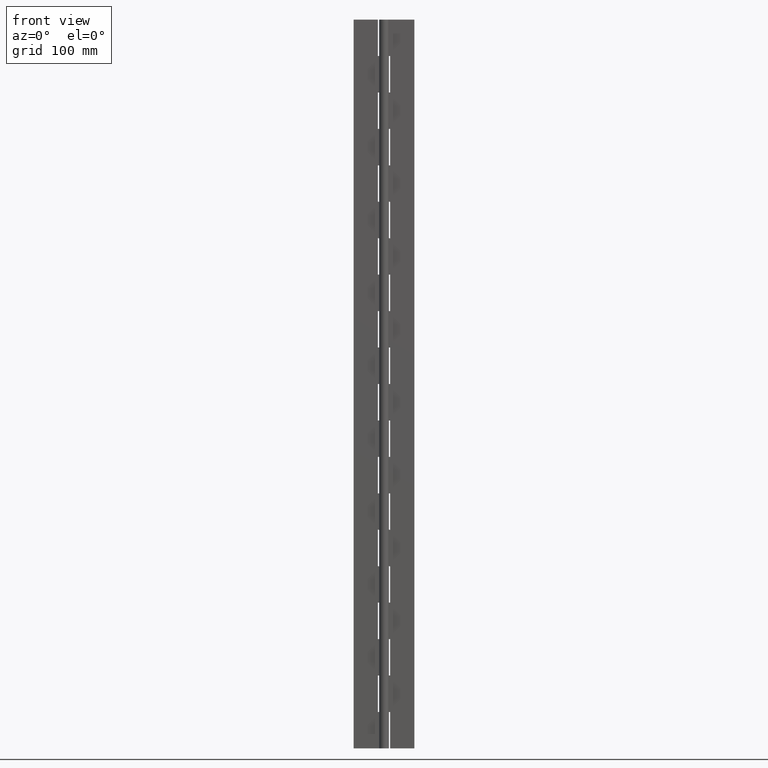
[diagram: clean part render]
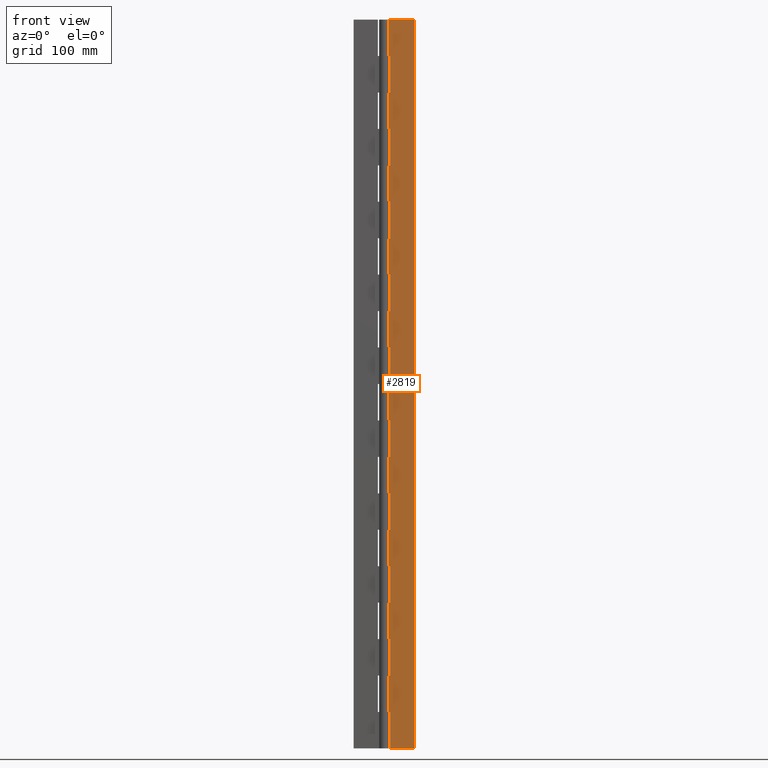
[diagram: same view with one face highlighted and labeled with its STEP entity id]
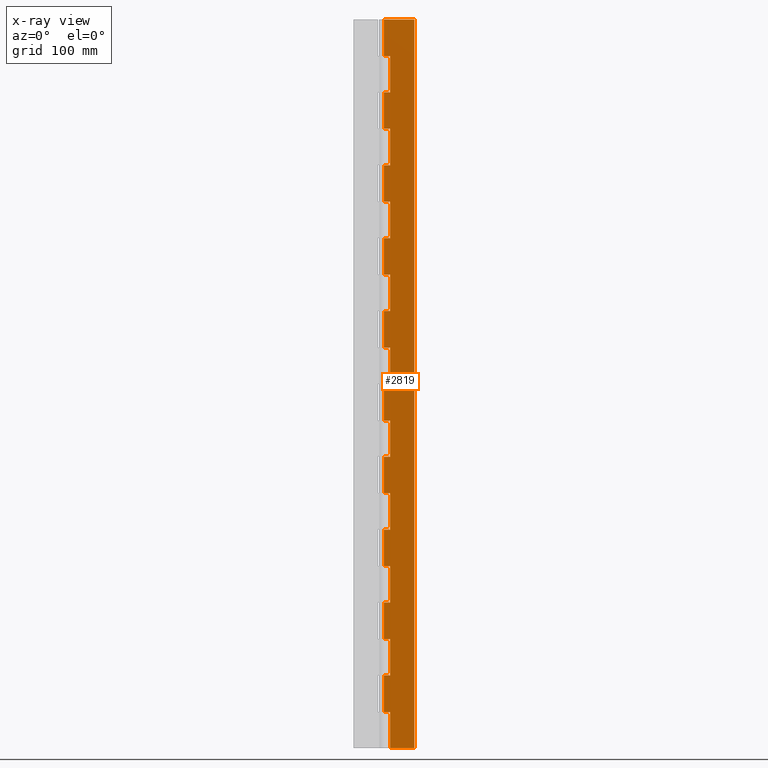
[diagram: x-ray of the same camera — body ghosted, the highlighted face saturated]
A machine part, front view. The second image highlights one B-rep face of the part: STEP entity #2819.
The next image is the same camera in x-ray: the body ghosted, the highlighted face saturated — about 0% of this face is hidden behind the body in this view.
In plain terms, the highlighted face is a freeform B-spline surface patch.
Its self-contained STEP definition (entity closure, byte-faithful):
#79=CARTESIAN_POINT('',(5.0,2.0,570.0));
#80=VERTEX_POINT('',#79);
#86=CARTESIAN_POINT('',(-3.673819E-016,2.0,570.0));
#87=VERTEX_POINT('',#86);
#88=CARTESIAN_POINT('',(5.0,2.0,570.0));
#89=CARTESIAN_POINT('',(-3.673819E-016,2.0,570.0));
#90=QUASI_UNIFORM_CURVE('',1,(#88,#89),.UNSPECIFIED.,.F.,.U.);
#91=EDGE_CURVE('',#80,#87,#90,.T.);
#127=CARTESIAN_POINT('',(-3.673819E-016,2.0,540.0));
#128=VERTEX_POINT('',#127);
#129=CARTESIAN_POINT('',(5.0,2.0,540.0));
#130=VERTEX_POINT('',#129);
#131=CARTESIAN_POINT('',(-3.673819E-016,2.0,540.0));
#132=CARTESIAN_POINT('',(5.0,2.0,540.0));
#133=QUASI_UNIFORM_CURVE('',1,(#131,#132),.UNSPECIFIED.,.F.,.U.);
#134=EDGE_CURVE('',#128,#130,#133,.T.);
#205=CARTESIAN_POINT('',(5.0,2.0,540.0));
#206=CARTESIAN_POINT('',(5.0,2.0,570.0));
#207=QUASI_UNIFORM_CURVE('',1,(#205,#206),.UNSPECIFIED.,.F.,.U.);
#208=EDGE_CURVE('',#130,#80,#207,.T.);
#255=CARTESIAN_POINT('',(5.0,2.0,510.0));
#256=VERTEX_POINT('',#255);
#262=CARTESIAN_POINT('',(-3.673819E-016,2.0,510.0));
#263=VERTEX_POINT('',#262);
#264=CARTESIAN_POINT('',(5.0,2.0,510.0));
#265=CARTESIAN_POINT('',(-3.673819E-016,2.0,510.0));
#266=QUASI_UNIFORM_CURVE('',1,(#264,#265),.UNSPECIFIED.,.F.,.U.);
#267=EDGE_CURVE('',#256,#263,#266,.T.);
#303=CARTESIAN_POINT('',(-3.673819E-016,2.0,480.0));
#304=VERTEX_POINT('',#303);
#305=CARTESIAN_POINT('',(5.0,2.0,480.0));
#306=VERTEX_POINT('',#305);
#307=CARTESIAN_POINT('',(-3.673819E-016,2.0,480.0));
#308=CARTESIAN_POINT('',(5.0,2.0,480.0));
#309=QUASI_UNIFORM_CURVE('',1,(#307,#308),.UNSPECIFIED.,.F.,.U.);
#310=EDGE_CURVE('',#304,#306,#309,.T.);
#381=CARTESIAN_POINT('',(5.0,2.0,480.0));
#382=CARTESIAN_POINT('',(5.0,2.0,510.0));
#383=QUASI_UNIFORM_CURVE('',1,(#381,#382),.UNSPECIFIED.,.F.,.U.);
#384=EDGE_CURVE('',#306,#256,#383,.T.);
#431=CARTESIAN_POINT('',(5.0,2.0,450.0));
#432=VERTEX_POINT('',#431);
#438=CARTESIAN_POINT('',(-3.673819E-016,2.0,450.0));
#439=VERTEX_POINT('',#438);
#440=CARTESIAN_POINT('',(5.0,2.0,450.0));
#441=CARTESIAN_POINT('',(-3.673819E-016,2.0,450.0));
#442=QUASI_UNIFORM_CURVE('',1,(#440,#441),.UNSPECIFIED.,.F.,.U.);
#443=EDGE_CURVE('',#432,#439,#442,.T.);
#479=CARTESIAN_POINT('',(-3.673819E-016,2.0,420.0));
#480=VERTEX_POINT('',#479);
#481=CARTESIAN_POINT('',(5.0,2.0,420.0));
#482=VERTEX_POINT('',#481);
#483=CARTESIAN_POINT('',(-3.673819E-016,2.0,420.0));
#484=CARTESIAN_POINT('',(5.0,2.0,420.0));
#485=QUASI_UNIFORM_CURVE('',1,(#483,#484),.UNSPECIFIED.,.F.,.U.);
#486=EDGE_CURVE('',#480,#482,#485,.T.);
#557=CARTESIAN_POINT('',(5.0,2.0,420.0));
#558=CARTESIAN_POINT('',(5.0,2.0,450.0));
#559=QUASI_UNIFORM_CURVE('',1,(#557,#558),.UNSPECIFIED.,.F.,.U.);
#560=EDGE_CURVE('',#482,#432,#559,.T.);
#607=CARTESIAN_POINT('',(5.0,2.0,390.0));
#608=VERTEX_POINT('',#607);
#614=CARTESIAN_POINT('',(-3.673819E-016,2.0,390.0));
#615=VERTEX_POINT('',#614);
#616=CARTESIAN_POINT('',(5.0,2.0,390.0));
#617=CARTESIAN_POINT('',(-3.673819E-016,2.0,390.0));
#618=QUASI_UNIFORM_CURVE('',1,(#616,#617),.UNSPECIFIED.,.F.,.U.);
#619=EDGE_CURVE('',#608,#615,#618,.T.);
#655=CARTESIAN_POINT('',(-3.673819E-016,2.0,360.0));
#656=VERTEX_POINT('',#655);
#657=CARTESIAN_POINT('',(5.0,2.0,360.0));
#658=VERTEX_POINT('',#657);
#659=CARTESIAN_POINT('',(-3.673819E-016,2.0,360.0));
#660=CARTESIAN_POINT('',(5.0,2.0,360.0));
#661=QUASI_UNIFORM_CURVE('',1,(#659,#660),.UNSPECIFIED.,.F.,.U.);
#662=EDGE_CURVE('',#656,#658,#661,.T.);
#733=CARTESIAN_POINT('',(5.0,2.0,360.0));
#734=CARTESIAN_POINT('',(5.0,2.0,390.0));
#735=QUASI_UNIFORM_CURVE('',1,(#733,#734),.UNSPECIFIED.,.F.,.U.);
#736=EDGE_CURVE('',#658,#608,#735,.T.);
#783=CARTESIAN_POINT('',(5.0,2.0,330.0));
#784=VERTEX_POINT('',#783);
#790=CARTESIAN_POINT('',(-3.673819E-016,2.0,330.0));
#791=VERTEX_POINT('',#790);
#792=CARTESIAN_POINT('',(5.0,2.0,330.0));
#793=CARTESIAN_POINT('',(-3.673819E-016,2.0,330.0));
#794=QUASI_UNIFORM_CURVE('',1,(#792,#793),.UNSPECIFIED.,.F.,.U.);
#795=EDGE_CURVE('',#784,#791,#794,.T.);
#831=CARTESIAN_POINT('',(-3.673819E-016,2.0,300.0));
#832=VERTEX_POINT('',#831);
#833=CARTESIAN_POINT('',(5.0,2.0,300.0));
#834=VERTEX_POINT('',#833);
#835=CARTESIAN_POINT('',(-3.673819E-016,2.0,300.0));
#836=CARTESIAN_POINT('',(5.0,2.0,300.0));
#837=QUASI_UNIFORM_CURVE('',1,(#835,#836),.UNSPECIFIED.,.F.,.U.);
#838=EDGE_CURVE('',#832,#834,#837,.T.);
#909=CARTESIAN_POINT('',(5.0,2.0,300.0));
#910=CARTESIAN_POINT('',(5.0,2.0,330.0));
#911=QUASI_UNIFORM_CURVE('',1,(#909,#910),.UNSPECIFIED.,.F.,.U.);
#912=EDGE_CURVE('',#834,#784,#911,.T.);
#959=CARTESIAN_POINT('',(5.0,2.0,270.0));
#960=VERTEX_POINT('',#959);
#966=CARTESIAN_POINT('',(-3.673819E-016,2.0,270.0));
#967=VERTEX_POINT('',#966);
#968=CARTESIAN_POINT('',(5.0,2.0,270.0));
#969=CARTESIAN_POINT('',(-3.673819E-016,2.0,270.0));
#970=QUASI_UNIFORM_CURVE('',1,(#968,#969),.UNSPECIFIED.,.F.,.U.);
#971=EDGE_CURVE('',#960,#967,#970,.T.);
#1007=CARTESIAN_POINT('',(-3.673819E-016,2.0,240.0));
#1008=VERTEX_POINT('',#1007);
#1009=CARTESIAN_POINT('',(5.0,2.0,240.0));
#1010=VERTEX_POINT('',#1009);
#1011=CARTESIAN_POINT('',(-3.673819E-016,2.0,240.0));
#1012=CARTESIAN_POINT('',(5.0,2.0,240.0));
#1013=QUASI_UNIFORM_CURVE('',1,(#1011,#1012),.UNSPECIFIED.,.F.,.U.);
#1014=EDGE_CURVE('',#1008,#1010,#1013,.T.);
#1085=CARTESIAN_POINT('',(5.0,2.0,240.0));
#1086=CARTESIAN_POINT('',(5.0,2.0,270.0));
#1087=QUASI_UNIFORM_CURVE('',1,(#1085,#1086),.UNSPECIFIED.,.F.,.U.);
#1088=EDGE_CURVE('',#1010,#960,#1087,.T.);
#1135=CARTESIAN_POINT('',(5.0,2.0,210.0));
#1136=VERTEX_POINT('',#1135);
#1142=CARTESIAN_POINT('',(-3.673819E-016,2.0,210.0));
#1143=VERTEX_POINT('',#1142);
#1144=CARTESIAN_POINT('',(5.0,2.0,210.0));
#1145=CARTESIAN_POINT('',(-3.673819E-016,2.0,210.0));
#1146=QUASI_UNIFORM_CURVE('',1,(#1144,#1145),.UNSPECIFIED.,.F.,.U.);
#1147=EDGE_CURVE('',#1136,#1143,#1146,.T.);
#1183=CARTESIAN_POINT('',(-3.673819E-016,2.0,180.0));
#1184=VERTEX_POINT('',#1183);
#1185=CARTESIAN_POINT('',(5.0,2.0,180.0));
#1186=VERTEX_POINT('',#1185);
#1187=CARTESIAN_POINT('',(-3.673819E-016,2.0,180.0));
#1188=CARTESIAN_POINT('',(5.0,2.0,180.0));
#1189=QUASI_UNIFORM_CURVE('',1,(#1187,#1188),.UNSPECIFIED.,.F.,.U.);
#1190=EDGE_CURVE('',#1184,#1186,#1189,.T.);
#1261=CARTESIAN_POINT('',(5.0,2.0,180.0));
#1262=CARTESIAN_POINT('',(5.0,2.0,210.0));
#1263=QUASI_UNIFORM_CURVE('',1,(#1261,#1262),.UNSPECIFIED.,.F.,.U.);
#1264=EDGE_CURVE('',#1186,#1136,#1263,.T.);
#1311=CARTESIAN_POINT('',(5.0,2.0,150.0));
#1312=VERTEX_POINT('',#1311);
#1318=CARTESIAN_POINT('',(-3.673819E-016,2.0,150.0));
#1319=VERTEX_POINT('',#1318);
#1320=CARTESIAN_POINT('',(5.0,2.0,150.0));
#1321=CARTESIAN_POINT('',(-3.673819E-016,2.0,150.0));
#1322=QUASI_UNIFORM_CURVE('',1,(#1320,#1321),.UNSPECIFIED.,.F.,.U.);
#1323=EDGE_CURVE('',#1312,#1319,#1322,.T.);
#1359=CARTESIAN_POINT('',(-3.673819E-016,2.0,120.0));
#1360=VERTEX_POINT('',#1359);
#1361=CARTESIAN_POINT('',(5.0,2.0,120.0));
#1362=VERTEX_POINT('',#1361);
#1363=CARTESIAN_POINT('',(-3.673819E-016,2.0,120.0));
#1364=CARTESIAN_POINT('',(5.0,2.0,120.0));
#1365=QUASI_UNIFORM_CURVE('',1,(#1363,#1364),.UNSPECIFIED.,.F.,.U.);
#1366=EDGE_CURVE('',#1360,#1362,#1365,.T.);
#1437=CARTESIAN_POINT('',(5.0,2.0,120.0));
#1438=CARTESIAN_POINT('',(5.0,2.0,150.0));
#1439=QUASI_UNIFORM_CURVE('',1,(#1437,#1438),.UNSPECIFIED.,.F.,.U.);
#1440=EDGE_CURVE('',#1362,#1312,#1439,.T.);
#1487=CARTESIAN_POINT('',(5.0,2.0,90.0));
#1488=VERTEX_POINT('',#1487);
#1494=CARTESIAN_POINT('',(-3.673819E-016,2.0,90.0));
#1495=VERTEX_POINT('',#1494);
#1496=CARTESIAN_POINT('',(5.0,2.0,90.0));
#1497=CARTESIAN_POINT('',(-3.673819E-016,2.0,90.0));
#1498=QUASI_UNIFORM_CURVE('',1,(#1496,#1497),.UNSPECIFIED.,.F.,.U.);
#1499=EDGE_CURVE('',#1488,#1495,#1498,.T.);
#1535=CARTESIAN_POINT('',(-3.673819E-016,2.0,60.0));
#1536=VERTEX_POINT('',#1535);
#1537=CARTESIAN_POINT('',(5.0,2.0,60.0));
#1538=VERTEX_POINT('',#1537);
#1539=CARTESIAN_POINT('',(-3.673819E-016,2.0,60.0));
#1540=CARTESIAN_POINT('',(5.0,2.0,60.0));
#1541=QUASI_UNIFORM_CURVE('',1,(#1539,#1540),.UNSPECIFIED.,.F.,.U.);
#1542=EDGE_CURVE('',#1536,#1538,#1541,.T.);
#1613=CARTESIAN_POINT('',(5.0,2.0,60.0));
#1614=CARTESIAN_POINT('',(5.0,2.0,90.0));
#1615=QUASI_UNIFORM_CURVE('',1,(#1613,#1614),.UNSPECIFIED.,.F.,.U.);
#1616=EDGE_CURVE('',#1538,#1488,#1615,.T.);
#1633=CARTESIAN_POINT('',(5.0,2.0,0.0));
#1634=VERTEX_POINT('',#1633);
#1635=CARTESIAN_POINT('',(5.0,2.0,30.0));
#1636=VERTEX_POINT('',#1635);
#1637=CARTESIAN_POINT('',(5.0,2.0,0.0));
#1638=CARTESIAN_POINT('',(5.0,2.0,30.0));
#1639=QUASI_UNIFORM_CURVE('',1,(#1637,#1638),.UNSPECIFIED.,.F.,.U.);
#1640=EDGE_CURVE('',#1634,#1636,#1639,.T.);
#1698=CARTESIAN_POINT('',(-3.673819E-016,2.0,30.0));
#1699=VERTEX_POINT('',#1698);
#1700=CARTESIAN_POINT('',(5.0,2.0,30.0));
#1701=CARTESIAN_POINT('',(-3.673819E-016,2.0,30.0));
#1702=QUASI_UNIFORM_CURVE('',1,(#1700,#1701),.UNSPECIFIED.,.F.,.U.);
#1703=EDGE_CURVE('',#1636,#1699,#1702,.T.);
#1739=CARTESIAN_POINT('',(-3.673819E-016,2.0,600.0));
#1740=VERTEX_POINT('',#1739);
#1741=CARTESIAN_POINT('',(25.0,2.0,600.0));
#1742=VERTEX_POINT('',#1741);
#1743=CARTESIAN_POINT('',(-3.673819E-016,2.0,600.0));
#1744=CARTESIAN_POINT('',(25.0,2.0,600.0));
#1745=QUASI_UNIFORM_CURVE('',1,(#1743,#1744),.UNSPECIFIED.,.F.,.U.);
#1746=EDGE_CURVE('',#1740,#1742,#1745,.T.);
#1817=CARTESIAN_POINT('',(25.0,2.0,0.0));
#1818=VERTEX_POINT('',#1817);
#1832=CARTESIAN_POINT('',(25.0,2.0,600.0));
#1833=CARTESIAN_POINT('',(25.0,2.0,0.0));
#1834=QUASI_UNIFORM_CURVE('',1,(#1832,#1833),.UNSPECIFIED.,.F.,.U.);
#1835=EDGE_CURVE('',#1742,#1818,#1834,.T.);
#1852=CARTESIAN_POINT('',(5.0,2.0,0.0));
#1853=CARTESIAN_POINT('',(25.0,2.0,0.0));
#1854=QUASI_UNIFORM_CURVE('',1,(#1852,#1853),.UNSPECIFIED.,.F.,.U.);
#1855=EDGE_CURVE('',#1634,#1818,#1854,.T.);
#1882=CARTESIAN_POINT('',(-3.673819E-016,2.0,60.0));
#1883=CARTESIAN_POINT('',(-3.673819E-016,2.0,30.0));
#1884=QUASI_UNIFORM_CURVE('',1,(#1882,#1883),.UNSPECIFIED.,.F.,.U.);
#1885=EDGE_CURVE('',#1536,#1699,#1884,.T.);
#1968=CARTESIAN_POINT('',(-3.673819E-016,2.0,120.0));
#1969=CARTESIAN_POINT('',(-3.673819E-016,2.0,90.0));
#1970=QUASI_UNIFORM_CURVE('',1,(#1968,#1969),.UNSPECIFIED.,.F.,.U.);
#1971=EDGE_CURVE('',#1360,#1495,#1970,.T.);
#2054=CARTESIAN_POINT('',(-3.673819E-016,2.0,180.0));
#2055=CARTESIAN_POINT('',(-3.673819E-016,2.0,150.0));
#2056=QUASI_UNIFORM_CURVE('',1,(#2054,#2055),.UNSPECIFIED.,.F.,.U.);
#2057=EDGE_CURVE('',#1184,#1319,#2056,.T.);
#2140=CARTESIAN_POINT('',(-3.673819E-016,2.0,240.0));
#2141=CARTESIAN_POINT('',(-3.673819E-016,2.0,210.0));
#2142=QUASI_UNIFORM_CURVE('',1,(#2140,#2141),.UNSPECIFIED.,.F.,.U.);
#2143=EDGE_CURVE('',#1008,#1143,#2142,.T.);
#2226=CARTESIAN_POINT('',(-3.673819E-016,2.0,300.0));
#2227=CARTESIAN_POINT('',(-3.673819E-016,2.0,270.0));
#2228=QUASI_UNIFORM_CURVE('',1,(#2226,#2227),.UNSPECIFIED.,.F.,.U.);
#2229=EDGE_CURVE('',#832,#967,#2228,.T.);
#2312=CARTESIAN_POINT('',(-3.673819E-016,2.0,360.0));
#2313=CARTESIAN_POINT('',(-3.673819E-016,2.0,330.0));
#2314=QUASI_UNIFORM_CURVE('',1,(#2312,#2313),.UNSPECIFIED.,.F.,.U.);
#2315=EDGE_CURVE('',#656,#791,#2314,.T.);
#2398=CARTESIAN_POINT('',(-3.673819E-016,2.0,420.0));
#2399=CARTESIAN_POINT('',(-3.673819E-016,2.0,390.0));
#2400=QUASI_UNIFORM_CURVE('',1,(#2398,#2399),.UNSPECIFIED.,.F.,.U.);
#2401=EDGE_CURVE('',#480,#615,#2400,.T.);
#2484=CARTESIAN_POINT('',(-3.673819E-016,2.0,480.0));
#2485=CARTESIAN_POINT('',(-3.673819E-016,2.0,450.0));
#2486=QUASI_UNIFORM_CURVE('',1,(#2484,#2485),.UNSPECIFIED.,.F.,.U.);
#2487=EDGE_CURVE('',#304,#439,#2486,.T.);
#2576=CARTESIAN_POINT('',(-3.673819E-016,2.0,600.0));
#2577=CARTESIAN_POINT('',(-3.673819E-016,2.0,570.0));
#2578=QUASI_UNIFORM_CURVE('',1,(#2576,#2577),.UNSPECIFIED.,.F.,.U.);
#2579=EDGE_CURVE('',#1740,#87,#2578,.T.);
#2607=CARTESIAN_POINT('',(-3.673819E-016,2.0,540.0));
#2608=CARTESIAN_POINT('',(-3.673819E-016,2.0,510.0));
#2609=QUASI_UNIFORM_CURVE('',1,(#2607,#2608),.UNSPECIFIED.,.F.,.U.);
#2610=EDGE_CURVE('',#128,#263,#2609,.T.);
#2770=CARTESIAN_POINT('',(-1.248749951545148,2.0,-29.969998837083590));
#2771=CARTESIAN_POINT('',(-1.248749951545148,2.0,629.970014930337700));
#2772=CARTESIAN_POINT('',(26.248750622097401,2.0,-29.969998837083590));
#2773=CARTESIAN_POINT('',(26.248750622097401,2.0,629.970014930337700));
#2774=B_SPLINE_SURFACE_WITH_KNOTS('',1,1,((#2770,#2772),(#2771,#2773)),.UNSPECIFIED.,.F.,.F.,.U.,(2,2),(2,2),(0.0,659.940013767421310),(0.0,27.497500573642551),.UNSPECIFIED.);
#2775=ORIENTED_EDGE('',*,*,#134,.F.);
#2776=ORIENTED_EDGE('',*,*,#2610,.T.);
#2777=ORIENTED_EDGE('',*,*,#267,.F.);
#2778=ORIENTED_EDGE('',*,*,#384,.F.);
#2779=ORIENTED_EDGE('',*,*,#310,.F.);
#2780=ORIENTED_EDGE('',*,*,#2487,.T.);
#2781=ORIENTED_EDGE('',*,*,#443,.F.);
#2782=ORIENTED_EDGE('',*,*,#560,.F.);
#2783=ORIENTED_EDGE('',*,*,#486,.F.);
#2784=ORIENTED_EDGE('',*,*,#2401,.T.);
#2785=ORIENTED_EDGE('',*,*,#619,.F.);
#2786=ORIENTED_EDGE('',*,*,#736,.F.);
#2787=ORIENTED_EDGE('',*,*,#662,.F.);
#2788=ORIENTED_EDGE('',*,*,#2315,.T.);
#2789=ORIENTED_EDGE('',*,*,#795,.F.);
#2790=ORIENTED_EDGE('',*,*,#912,.F.);
#2791=ORIENTED_EDGE('',*,*,#838,.F.);
#2792=ORIENTED_EDGE('',*,*,#2229,.T.);
#2793=ORIENTED_EDGE('',*,*,#971,.F.);
#2794=ORIENTED_EDGE('',*,*,#1088,.F.);
#2795=ORIENTED_EDGE('',*,*,#1014,.F.);
#2796=ORIENTED_EDGE('',*,*,#2143,.T.);
#2797=ORIENTED_EDGE('',*,*,#1147,.F.);
#2798=ORIENTED_EDGE('',*,*,#1264,.F.);
#2799=ORIENTED_EDGE('',*,*,#1190,.F.);
#2800=ORIENTED_EDGE('',*,*,#2057,.T.);
#2801=ORIENTED_EDGE('',*,*,#1323,.F.);
#2802=ORIENTED_EDGE('',*,*,#1440,.F.);
#2803=ORIENTED_EDGE('',*,*,#1366,.F.);
#2804=ORIENTED_EDGE('',*,*,#1971,.T.);
#2805=ORIENTED_EDGE('',*,*,#1499,.F.);
#2806=ORIENTED_EDGE('',*,*,#1616,.F.);
#2807=ORIENTED_EDGE('',*,*,#1542,.F.);
#2808=ORIENTED_EDGE('',*,*,#1885,.T.);
#2809=ORIENTED_EDGE('',*,*,#1703,.F.);
#2810=ORIENTED_EDGE('',*,*,#1640,.F.);
#2811=ORIENTED_EDGE('',*,*,#1855,.T.);
#2812=ORIENTED_EDGE('',*,*,#1835,.F.);
#2813=ORIENTED_EDGE('',*,*,#1746,.F.);
#2814=ORIENTED_EDGE('',*,*,#2579,.T.);
#2815=ORIENTED_EDGE('',*,*,#91,.F.);
#2816=ORIENTED_EDGE('',*,*,#208,.F.);
#2817=EDGE_LOOP('',(#2775,#2776,#2777,#2778,#2779,#2780,#2781,#2782,#2783,#2784,#2785,#2786,#2787,#2788,#2789,#2790,#2791,#2792,#2793,#2794,#2795,#2796,#2797,#2798,#2799,#2800,#2801,#2802,#2803,#2804,#2805,#2806,#2807,#2808,#2809,#2810,#2811,#2812,#2813,#2814,#2815,#2816));
#2818=FACE_OUTER_BOUND('',#2817,.T.);
#2819=ADVANCED_FACE('',(#2818),#2774,.F.);